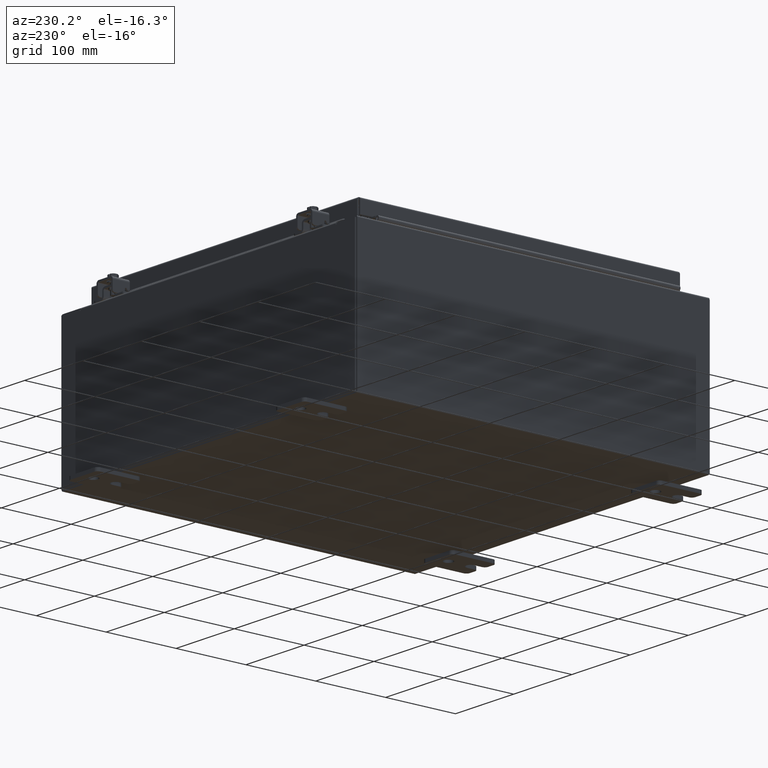
[diagram: clean part render]
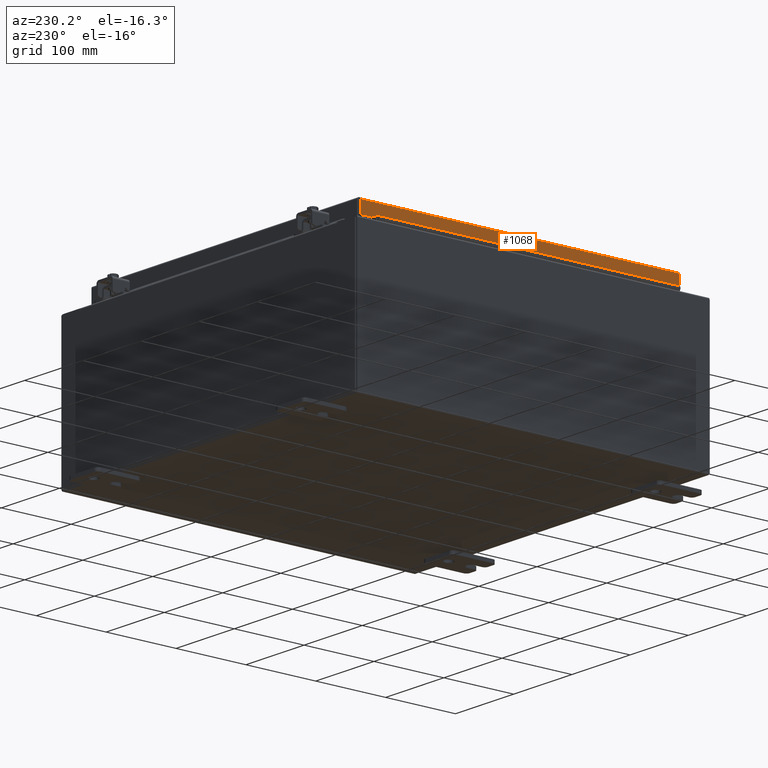
[diagram: same view with one face highlighted and labeled with its STEP entity id]
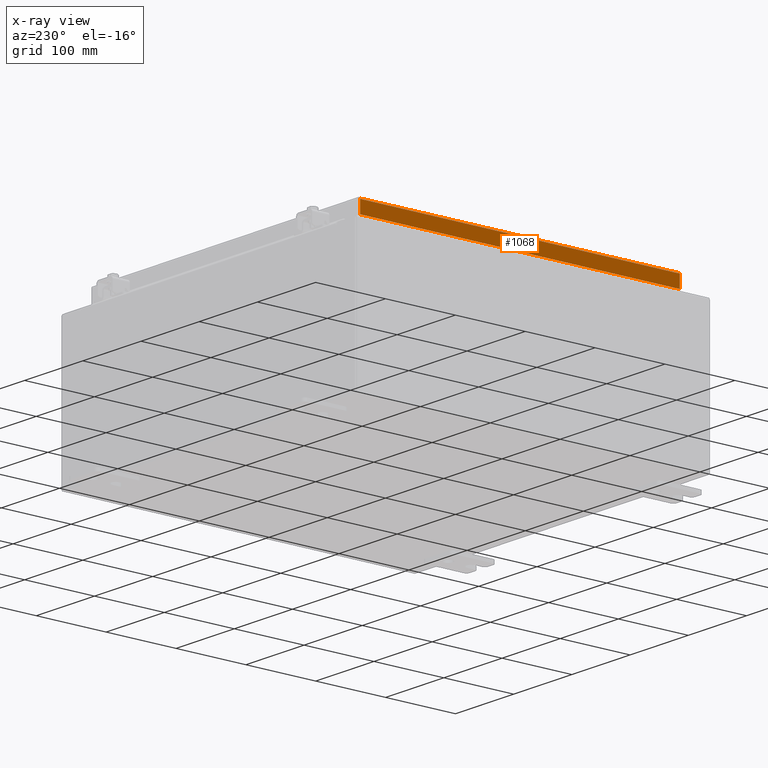
[diagram: x-ray of the same camera — body ghosted, the highlighted face saturated]
A machine part, auxiliary view. The second image highlights one B-rep face of the part: STEP entity #1068.
The next image is the same camera in x-ray: the body ghosted, the highlighted face saturated — about 0% of this face is hidden behind the body in this view.
In plain terms, the highlighted planar face has unit normal (1, 0, -0).
Its self-contained STEP definition (entity closure, byte-faithful):
#547 = ORIENTED_EDGE ( 'NONE', *, *, #9989, .F. ) ;
#1068 = ADVANCED_FACE ( 'NONE', ( #23872 ), #18488, .F. ) ;
#1307 = VECTOR ( 'NONE', #27374, 39.37007874015748100 ) ;
#2579 = CARTESIAN_POINT ( 'NONE',  ( -9.077999999999999400, -3.309671217585745400E-030, 2.780457718396846700E-014 ) ) ;
#3475 = CARTESIAN_POINT ( 'NONE',  ( -9.077999999999999400, -9.005157864376268900, -0.08770000000000007000 ) ) ;
#4748 = VECTOR ( 'NONE', #17009, 39.37007874015748100 ) ;
#4786 = VECTOR ( 'NONE', #6447, 39.37007874015748100 ) ;
#4937 = CARTESIAN_POINT ( 'NONE',  ( -9.078000000000001200, 9.005157864376274200, -0.7949999999999974900 ) ) ;
#5748 = EDGE_CURVE ( 'NONE', #25372, #25548, #14148, .T. ) ;
#6447 = DIRECTION ( 'NONE',  ( 4.379057701015054300E-047, 1.000000000000000000, 1.201604571657912400E-016 ) ) ;
#7152 = DIRECTION ( 'NONE',  ( -3.034122441942816500E-015, 0.0000000000000000000, -1.000000000000000000 ) ) ;
#7909 = DIRECTION ( 'NONE',  ( 3.645815397208356400E-031, -1.000000000000000000, -1.074717912135910100E-045 ) ) ;
#8238 = ORIENTED_EDGE ( 'NONE', *, *, #27262, .F. ) ;
#9989 = EDGE_CURVE ( 'NONE', #25372, #24063, #24516, .T. ) ;
#10827 = LINE ( 'NONE', #24515, #4786 ) ;
#11505 = CARTESIAN_POINT ( 'NONE',  ( -9.077999999999999400, 9.005157864376268900, 9.068725845758093100E-014 ) ) ;
#11515 = CARTESIAN_POINT ( 'NONE',  ( -9.078000000000001200, -9.005157864376261800, -0.7949999999999996000 ) ) ;
#12442 = CARTESIAN_POINT ( 'NONE',  ( -9.077999999999999400, -9.005157864376267100, -0.07469999999999976700 ) ) ;
#14148 = LINE ( 'NONE', #11505, #1307 ) ;
#14812 = VERTEX_POINT ( 'NONE', #11515 ) ;
#15640 = VECTOR ( 'NONE', #7909, 39.37007874015748100 ) ;
#16776 = EDGE_LOOP ( 'NONE', ( #547, #22174, #8238, #22774 ) ) ;
#17009 = DIRECTION ( 'NONE',  ( -3.034122441942816500E-015, 6.982962677686267500E-015, -1.000000000000000000 ) ) ;
#17550 = LINE ( 'NONE', #12442, #4748 ) ;
#18488 = PLANE ( 'NONE',  #28377 ) ;
#20764 = DIRECTION ( 'NONE',  ( 1.000000000000000000, 3.645815397208356400E-031, -3.034122441942816500E-015 ) ) ;
#21321 = EDGE_CURVE ( 'NONE', #24063, #14812, #17550, .T. ) ;
#22174 = ORIENTED_EDGE ( 'NONE', *, *, #5748, .T. ) ;
#22774 = ORIENTED_EDGE ( 'NONE', *, *, #21321, .F. ) ;
#23872 = FACE_OUTER_BOUND ( 'NONE', #16776, .T. ) ;
#24063 = VERTEX_POINT ( 'NONE', #3475 ) ;
#24515 = CARTESIAN_POINT ( 'NONE',  ( -9.078000000000001200, -9.093999999999999400, -0.7949999999999997100 ) ) ;
#24516 = LINE ( 'NONE', #25980, #15640 ) ;
#25372 = VERTEX_POINT ( 'NONE', #27065 ) ;
#25548 = VERTEX_POINT ( 'NONE', #4937 ) ;
#25980 = CARTESIAN_POINT ( 'NONE',  ( -9.077999999999999400, -9.093999999999999400, -0.08770000000000004200 ) ) ;
#27065 = CARTESIAN_POINT ( 'NONE',  ( -9.077999999999999400, 9.005157864376270600, -0.08770000000000004200 ) ) ;
#27262 = EDGE_CURVE ( 'NONE', #14812, #25548, #10827, .T. ) ;
#27374 = DIRECTION ( 'NONE',  ( -3.034122441942816500E-015, 6.982962677686267500E-015, -1.000000000000000000 ) ) ;
#28377 = AXIS2_PLACEMENT_3D ( 'NONE', #2579, #20764, #7152 ) ;